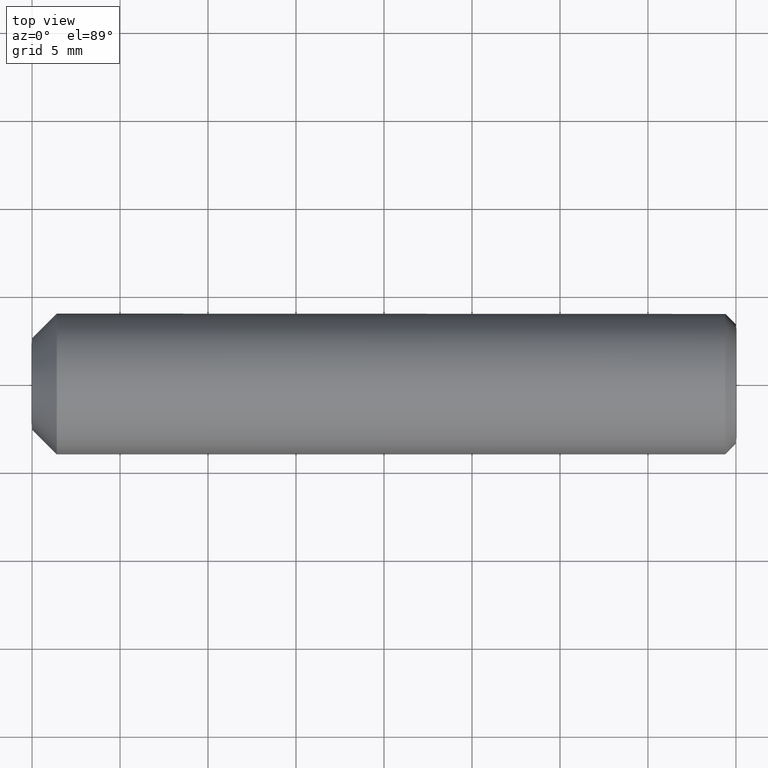
[diagram: clean part render]
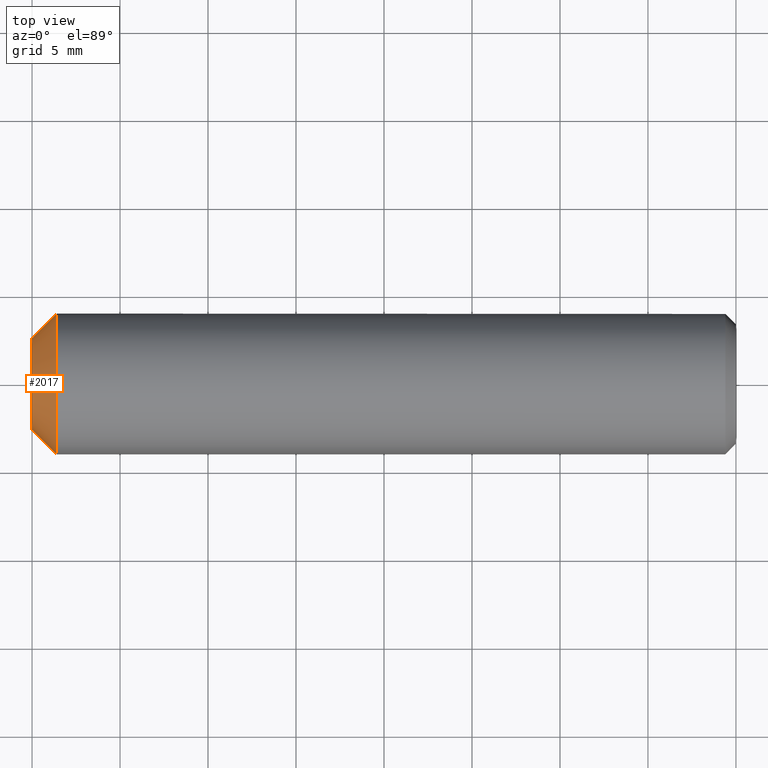
[diagram: same view with one face highlighted and labeled with its STEP entity id]
A machine part, top view. The second image highlights one B-rep face of the part: STEP entity #2017.
In plain terms, the highlighted conical surface has half-angle 45 deg.
Its self-contained STEP definition (entity closure, byte-faithful):
#1104 = CIRCLE ( 'NONE', #6778, 4.000000000000000000 ) ;
#1779 = CARTESIAN_POINT ( 'NONE',  ( 1.399999999999984100, -4.000000000000000000, 0.0000000000000000000 ) ) ;
#2017 = ADVANCED_FACE ( 'NONE', ( #13761, #10157 ), #6324, .T. ) ;
#2126 = EDGE_LOOP ( 'NONE', ( #4261 ) ) ;
#2250 = AXIS2_PLACEMENT_3D ( 'NONE', #10439, #7770, #10379 ) ;
#4027 = DIRECTION ( 'NONE',  ( -1.000000000000000000, 3.242134472605243700E-017, -0.0000000000000000000 ) ) ;
#4261 = ORIENTED_EDGE ( 'NONE', *, *, #10994, .F. ) ;
#4670 = EDGE_LOOP ( 'NONE', ( #6624 ) ) ;
#5352 = CIRCLE ( 'NONE', #14351, 2.600000000000000100 ) ;
#5375 = VERTEX_POINT ( 'NONE', #14133 ) ;
#6324 = CONICAL_SURFACE ( 'NONE', #2250, 2.600000000000000100, 0.7853981633974539400 ) ;
#6624 = ORIENTED_EDGE ( 'NONE', *, *, #17359, .T. ) ;
#6778 = AXIS2_PLACEMENT_3D ( 'NONE', #14752, #12258, #16144 ) ;
#7495 = VERTEX_POINT ( 'NONE', #1779 ) ;
#7770 = DIRECTION ( 'NONE',  ( 1.000000000000000000, -3.242134472605243700E-017, 0.0000000000000000000 ) ) ;
#9441 = CARTESIAN_POINT ( 'NONE',  ( -9.654196427920979400E-017, 3.130020304426501400E-033, 0.0000000000000000000 ) ) ;
#10157 = FACE_BOUND ( 'NONE', #2126, .T. ) ;
#10379 = DIRECTION ( 'NONE',  ( 3.242134472605243000E-017, 1.000000000000000000, 0.0000000000000000000 ) ) ;
#10439 = CARTESIAN_POINT ( 'NONE',  ( -9.654196427920979400E-017, 3.130020304426501400E-033, 0.0000000000000000000 ) ) ;
#10556 = DIRECTION ( 'NONE',  ( -3.242134472605243000E-017, -1.000000000000000000, 0.0000000000000000000 ) ) ;
#10994 = EDGE_CURVE ( 'NONE', #5375, #5375, #5352, .T. ) ;
#12258 = DIRECTION ( 'NONE',  ( -1.000000000000000000, 3.242134472605243700E-017, -0.0000000000000000000 ) ) ;
#13761 = FACE_OUTER_BOUND ( 'NONE', #4670, .T. ) ;
#14133 = CARTESIAN_POINT ( 'NONE',  ( -1.808374605669461300E-016, -2.600000000000000100, 0.0000000000000000000 ) ) ;
#14351 = AXIS2_PLACEMENT_3D ( 'NONE', #9441, #4027, #10556 ) ;
#14752 = CARTESIAN_POINT ( 'NONE',  ( 1.399999999999984400, -4.538988261647290200E-017, 0.0000000000000000000 ) ) ;
#16144 = DIRECTION ( 'NONE',  ( -5.421010862427522200E-017, -1.000000000000000000, 0.0000000000000000000 ) ) ;
#17359 = EDGE_CURVE ( 'NONE', #7495, #7495, #1104, .T. ) ;